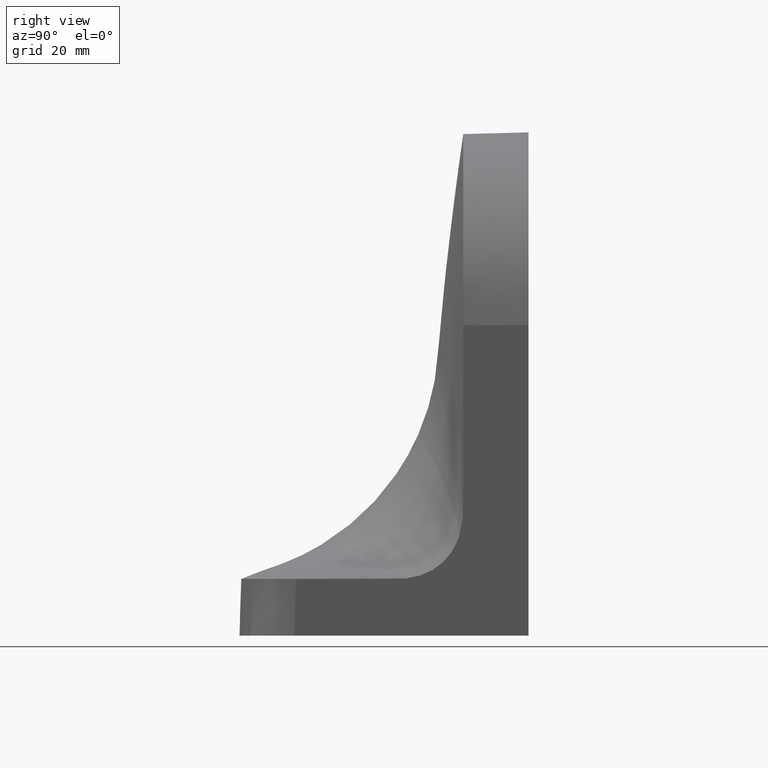
[diagram: clean part render]
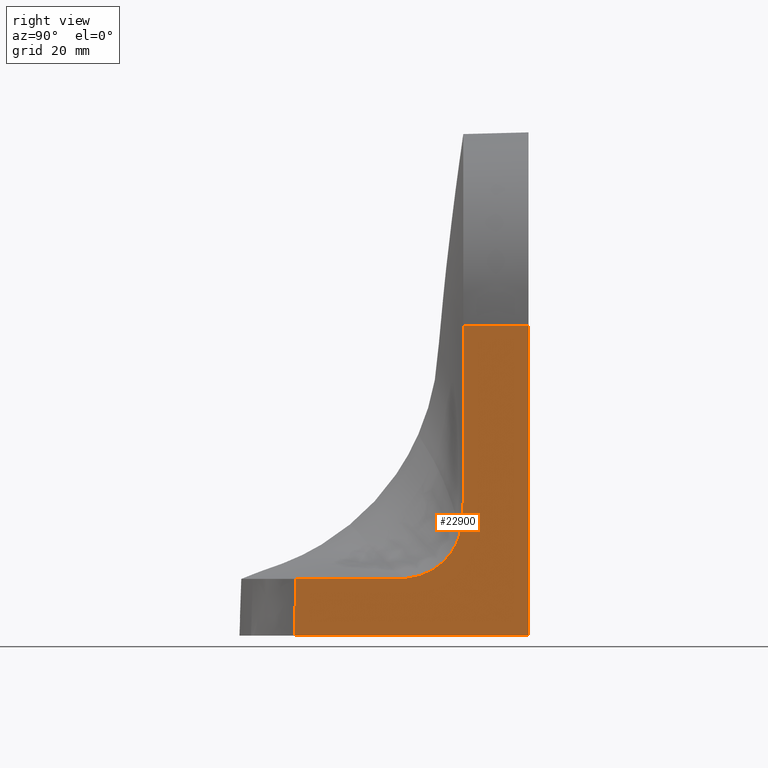
[diagram: same view with one face highlighted and labeled with its STEP entity id]
A machine part, right view. The second image highlights one B-rep face of the part: STEP entity #22900.
In plain terms, the highlighted planar face has unit normal (0.999, -0.0262, 0.0349).
Its self-contained STEP definition (entity closure, byte-faithful):
#459 = CARTESIAN_POINT ( 'NONE',  ( 74.25523126868630186, -23.00736894081169837, 104.2660714702110027 ) ) ;
#625 = CARTESIAN_POINT ( 'NONE',  ( 74.25523126868630186, -23.00736894081169837, 104.2660714702110027 ) ) ;
#656 = CARTESIAN_POINT ( 'NONE',  ( 74.17270098666395484, -23.00525012865582752, 106.6308397723373105 ) ) ;
#702 = VECTOR ( 'NONE', #53081, 1000.000000000000000 ) ;
#901 = ORIENTED_EDGE ( 'NONE', *, *, #26345, .T. ) ;
#1018 = CARTESIAN_POINT ( 'NONE',  ( 76.36643716833977180, -23.01893684610193702, 43.82109029424173485 ) ) ;
#1214 = CARTESIAN_POINT ( 'NONE',  ( 74.21046547155346218, -23.00663430341418092, 105.5489631305697884 ) ) ;
#1568 = CARTESIAN_POINT ( 'NONE',  ( 76.27885653992976245, -23.01010317783490322, 46.33483373321165288 ) ) ;
#1848 = CARTESIAN_POINT ( 'NONE',  ( 76.06503891046106958, -23.00630212378860051, 52.45852065692361066 ) ) ;
#1977 = CARTESIAN_POINT ( 'NONE',  ( 76.65797917407168427, -43.46079029540410232, 20.15186837681784837 ) ) ;
#2127 = CARTESIAN_POINT ( 'NONE',  ( 76.26720008635747661, -23.00984576400893999, 46.66870946604612413 ) ) ;
#3080 = CARTESIAN_POINT ( 'NONE',  ( 76.72466290581364490, -26.09274804863252228, 31.26220382637989204 ) ) ;
#4257 = EDGE_CURVE ( 'NONE', #11759, #13981, #47794, .T. ) ;
#4422 = CARTESIAN_POINT ( 'NONE',  ( 75.15619712898997307, -23.00531141550963099, 78.47616835009711167 ) ) ;
#4711 = CARTESIAN_POINT ( 'NONE',  ( 75.44189023084850021, -23.00428789394517182, 70.29855905187513088 ) ) ;
#4802 = B_SPLINE_CURVE_WITH_KNOTS ( 'NONE', 3,
 ( #1977, #45227, #6509, #44948, #28260, #27154, #49205, #36477, #53724, #32514, #45507, #6787, #24014, #41269, #52893, #33338, #29356, #3080, #45783, #54816, #7609, #24836 ),
 .UNSPECIFIED., .F., .F.,
 ( 4, 2, 2, 2, 2, 2, 2, 2, 2, 2, 4 ),
 ( 0.000000000000000000, 0.006430153132109961943, 0.008037691415137458717, 0.009645229698164954624, 0.01286030626421994644, 0.01446784454724743367, 0.01607538283027492090, 0.01929045939632989884, 0.02089799767935739128, 0.02250553596238487331, 0.02572061252843983042 ),
 .UNSPECIFIED. ) ;
#5502 = CARTESIAN_POINT ( 'NONE',  ( 74.47597193861523124, -7.666515893177463070, 109.4467044357807453 ) ) ;
#5555 = CARTESIAN_POINT ( 'NONE',  ( 76.06089169604261713, -23.00624593987393141, 52.57728275911799187 ) ) ;
#5747 = CARTESIAN_POINT ( 'NONE',  ( 74.21028011468109753, -23.00662913766518969, 105.5542412123686802 ) ) ;
#5826 = CARTESIAN_POINT ( 'NONE',  ( 76.36560344913026199, -23.01845695254299429, 43.84531644034294828 ) ) ;
#6101 = CARTESIAN_POINT ( 'NONE',  ( 76.05633849512008737, -23.00618508804033979, 52.70767030887307669 ) ) ;
#6509 = CARTESIAN_POINT ( 'NONE',  ( 76.74715414354004395, -39.20361969788754664, 20.79032290001560668 ) ) ;
#6657 = CARTESIAN_POINT ( 'NONE',  ( 76.33446744974858689, -23.01148545520704047, 44.74185517168780990 ) ) ;
#6787 = CARTESIAN_POINT ( 'NONE',  ( 76.80310430112331233, -29.96018764738739648, 26.11763558009348429 ) ) ;
#6961 = B_SPLINE_CURVE_WITH_KNOTS ( 'NONE', 3,
 ( #22425, #52124, #26944, #18196, #22702, #35443, #52685, #13961, #31742, #1214, #39400, #26383, #5747, #18465, #48993, #22147, #48167, #656, #17918, #9991, #47885, #17635, #52956 ),
 .UNSPECIFIED., .F., .F.,
 ( 4, 2, 2, 1, 1, 1, 1, 1, 2, 2, 1, 1, 2, 2, 4 ),
 ( 0.000000000000000000, 0.1250000000002101375, 0.1875000000003151923, 0.2187500000003677336, 0.2343750000003940182, 0.2421875000003949618, 0.2460937500003954059, 0.2480468750003956557, 0.2490234375003957668, 0.2500000000003958500, 0.3750000000003403944, 0.4375000000003128053, 0.4687500000002951528, 0.5000000000002774447, 1.000000000000000000 ),
 .UNSPECIFIED. ) ;
#7214 = VERTEX_POINT ( 'NONE', #8908 ) ;
#7588 = LINE ( 'NONE', #52806, #702 ) ;
#7609 = CARTESIAN_POINT ( 'NONE',  ( 76.65699486430382592, -24.73677771194880748, 34.21574752754838045 ) ) ;
#8736 = EDGE_CURVE ( 'NONE', #30452, #41019, #52569, .T. ) ;
#8908 = CARTESIAN_POINT ( 'NONE',  ( 76.33623540258125217, -82.63083625691017176, 1.037001081023662091E-14 ) ) ;
#8956 = CARTESIAN_POINT ( 'NONE',  ( 75.42182919616604408, -23.00436110798811029, 70.87278018269714153 ) ) ;
#9474 = CARTESIAN_POINT ( 'NONE',  ( 76.32322928003458173, -56.31338919402138288, 20.10013316570758590 ) ) ;
#9793 = CARTESIAN_POINT ( 'NONE',  ( 76.34410642749308806, -23.01204425214368499, 44.46550667059369744 ) ) ;
#9991 = CARTESIAN_POINT ( 'NONE',  ( 74.16717444936800518, -23.00499550582537012, 106.7891414210603074 ) ) ;
#10070 = CARTESIAN_POINT ( 'NONE',  ( 76.34505556496173995, -23.01214801186477743, 44.43825846416338976 ) ) ;
#10620 = CARTESIAN_POINT ( 'NONE',  ( 76.31672771609240158, -23.01099426808999127, 45.25004879773341315 ) ) ;
#10905 = CARTESIAN_POINT ( 'NONE',  ( 76.22444380684788712, -23.00895518838560250, 47.89333713533628156 ) ) ;
#11759 = VERTEX_POINT ( 'NONE', #39245 ) ;
#12208 = DIRECTION ( 'NONE',  ( 0.9990483607430193924, -0.02616100201823451030, 0.03489949670250105940 ) ) ;
#12925 = CARTESIAN_POINT ( 'NONE',  ( 74.46118202769872596, -23.00751116176639499, 98.37032774124462264 ) ) ;
#13961 = CARTESIAN_POINT ( 'NONE',  ( 74.21123807302076614, -23.00665463850611303, 105.5273000856290224 ) ) ;
#13981 = VERTEX_POINT ( 'NONE', #47875 ) ;
#13983 = CARTESIAN_POINT ( 'NONE',  ( 76.62966253428839991, -24.40257664500585122, 35.24869521133165051 ) ) ;
#14041 = CARTESIAN_POINT ( 'NONE',  ( 76.12807447639717395, -23.00721716123452509, 50.65335086749941951 ) ) ;
#14319 = CARTESIAN_POINT ( 'NONE',  ( 76.62966253428839991, -24.40257664500585122, 35.24869521133165051 ) ) ;
#14597 = CARTESIAN_POINT ( 'NONE',  ( 75.58036401282515726, -23.00378074852485000, 66.33492775264882368 ) ) ;
#14875 = CARTESIAN_POINT ( 'NONE',  ( 76.35118236290514915, -23.01302777431422442, 44.26221056978951651 ) ) ;
#15156 = CARTESIAN_POINT ( 'NONE',  ( 76.06413465822176079, -23.00628981720745614, 52.48441540485019630 ) ) ;
#15776 = CARTESIAN_POINT ( 'NONE',  ( 76.65797917407168427, -43.46079029540410232, 20.15186837681784837 ) ) ;
#16545 = EDGE_CURVE ( 'NONE', #49576, #13981, #6961, .T. ) ;
#17635 = CARTESIAN_POINT ( 'NONE',  ( 74.10463997545069503, -23.00135401649546552, 108.5799915448494062 ) ) ;
#17918 = CARTESIAN_POINT ( 'NONE',  ( 74.16897754911067864, -23.00507997709804187, 106.7374948450610930 ) ) ;
#18196 = CARTESIAN_POINT ( 'NONE',  ( 74.22075897857608595, -23.00688539095119722, 105.2601222348999812 ) ) ;
#18275 = CARTESIAN_POINT ( 'NONE',  ( 76.47267769108489688, -23.08246530855983636, 40.73218075361157275 ) ) ;
#18465 = CARTESIAN_POINT ( 'NONE',  ( 74.21030991748276051, -23.00662998825352545, 105.5533867407371247 ) ) ;
#18547 = CARTESIAN_POINT ( 'NONE',  ( 75.74448153187304911, -23.00371751991756142, 61.63687477933595460 ) ) ;
#18567 = ORIENTED_EDGE ( 'NONE', *, *, #48823, .T. ) ;
#18826 = CARTESIAN_POINT ( 'NONE',  ( 76.09044426318278909, -23.00664897987195090, 51.73099583586748196 ) ) ;
#19104 = CARTESIAN_POINT ( 'NONE',  ( 76.30732745368638348, -23.01076373316249857, 45.51931766003406921 ) ) ;
#19382 = CARTESIAN_POINT ( 'NONE',  ( 75.91270472790847634, -23.00467030578484895, 56.82052927429872824 ) ) ;
#19774 = AXIS2_PLACEMENT_3D ( 'NONE', #28873, #12208, #42718 ) ;
#22147 = CARTESIAN_POINT ( 'NONE',  ( 74.19138400216398566, -23.00603449690778390, 106.0956254051905745 ) ) ;
#22175 = CARTESIAN_POINT ( 'NONE',  ( 74.67620507080019365, -5.977045331083648973E-16, 109.4616374671337269 ) ) ;
#22425 = CARTESIAN_POINT ( 'NONE',  ( 74.25523126868630186, -23.00736894081169837, 104.2660714702110027 ) ) ;
#22702 = CARTESIAN_POINT ( 'NONE',  ( 74.21773945622652491, -23.00680947582613456, 105.3473679955647953 ) ) ;
#22900 = ADVANCED_FACE ( 'NONE', ( #29152 ), #38202, .T. ) ;
#23057 = CARTESIAN_POINT ( 'NONE',  ( 76.34319665887129247, -23.01195717993820011, 44.49161537795347954 ) ) ;
#23336 = CARTESIAN_POINT ( 'NONE',  ( 76.28533225141028140, -23.01024934116702170, 46.14934759930975616 ) ) ;
#23455 = CARTESIAN_POINT ( 'NONE',  ( 76.33623540258125217, -82.63083625691017176, 1.037001081023662091E-14 ) ) ;
#23614 = CARTESIAN_POINT ( 'NONE',  ( 76.02870145618652487, -23.00583401193726374, 53.49908352552879620 ) ) ;
#24014 = CARTESIAN_POINT ( 'NONE',  ( 76.79971962544730957, -29.57510410912609089, 26.50318916048402329 ) ) ;
#24663 = DIRECTION ( 'NONE',  ( 0.02617694830786621366, 0.9996573249755574819, -3.190671518216046637E-18 ) ) ;
#24836 = CARTESIAN_POINT ( 'NONE',  ( 76.62966253428839991, -24.40257664500585122, 35.24869521133165051 ) ) ;
#24973 = VECTOR ( 'NONE', #24663, 1000.000000000000114 ) ;
#25218 = EDGE_CURVE ( 'NONE', #30452, #32977, #4802, .T. ) ;
#26345 = EDGE_CURVE ( 'NONE', #41019, #7214, #35219, .T. ) ;
#26383 = CARTESIAN_POINT ( 'NONE',  ( 74.21031001317312814, -23.00662998077149268, 105.5533869843093981 ) ) ;
#26746 = CARTESIAN_POINT ( 'NONE',  ( 74.28671277581784693, -23.00767556508820277, 103.3646381355130188 ) ) ;
#26944 = CARTESIAN_POINT ( 'NONE',  ( 74.23184399895713170, -23.00716095588449051, 104.9378516054612192 ) ) ;
#27026 = CARTESIAN_POINT ( 'NONE',  ( 76.34415933718378255, -23.01204833198908162, 44.46398899619774170 ) ) ;
#27154 = CARTESIAN_POINT ( 'NONE',  ( 76.79556863343398732, -35.19600612131700501, 22.40853449148060861 ) ) ;
#27246 = CARTESIAN_POINT ( 'NONE',  ( 74.27573897290450589, -15.33303178142911705, 109.4317666425568518 ) ) ;
#27299 = CARTESIAN_POINT ( 'NONE',  ( 76.06478241283146247, -23.00629862967091555, 52.46586589024337854 ) ) ;
#27854 = CARTESIAN_POINT ( 'NONE',  ( 76.29790818059214530, -23.01054049842527860, 45.78912525837497327 ) ) ;
#28131 = CARTESIAN_POINT ( 'NONE',  ( 76.19146260569381468, -23.00833198990433814, 48.83793867862052451 ) ) ;
#28260 = CARTESIAN_POINT ( 'NONE',  ( 76.78583667024138038, -36.17675162846516201, 21.95194958845621613 ) ) ;
#28873 = CARTESIAN_POINT ( 'NONE',  ( 78.44636149690879279, -2.054190269545594472, -0.004361587295289890732 ) ) ;
#29063 = ORIENTED_EDGE ( 'NONE', *, *, #37295, .T. ) ;
#29152 = FACE_OUTER_BOUND ( 'NONE', #46590, .T. ) ;
#29356 = CARTESIAN_POINT ( 'NONE',  ( 76.74334556742826408, -26.62860442104202008, 30.32570258170263955 ) ) ;
#30427 = CARTESIAN_POINT ( 'NONE',  ( 75.38214205304039695, -23.00450540210032457, 72.00877365393810692 ) ) ;
#30452 = VERTEX_POINT ( 'NONE', #15776 ) ;
#30949 = CARTESIAN_POINT ( 'NONE',  ( 75.98847938599740814, -69.16598809263867054, 20.04839795459733409 ) ) ;
#31016 = ORIENTED_EDGE ( 'NONE', *, *, #25218, .F. ) ;
#31267 = CARTESIAN_POINT ( 'NONE',  ( 76.20151933129847066, -23.00851808960088718, 48.54991092079936976 ) ) ;
#31493 = CARTESIAN_POINT ( 'NONE',  ( 74.07528795069339367, -22.99954979039394942, 109.4208379550731962 ) ) ;
#31591 = VERTEX_POINT ( 'NONE', #54697 ) ;
#31669 = CARTESIAN_POINT ( 'NONE',  ( 75.88122772228739166, -82.22280745730070350, 13.33111257559553842 ) ) ;
#31742 = CARTESIAN_POINT ( 'NONE',  ( 74.21070165034882393, -23.00664069013664204, 105.5422938592579811 ) ) ;
#31823 = CARTESIAN_POINT ( 'NONE',  ( 76.32723349926041578, -23.01126212938326177, 44.94910483107042154 ) ) ;
#32088 = B_SPLINE_CURVE_WITH_KNOTS ( 'NONE', 3,
 ( #459, #26746, #12925, #43154, #4422, #34684, #30427, #8956, #4711, #53320, #44816, #40587, #40861, #35791, #32382, #36346, #14597, #18547, #19382, #52766, #23614, #53870, #6101, #5555, #40305, #15156, #27299, #1848, #18826, #14041, #49635, #48799, #39763, #28131, #31267, #10905, #45376, #2127, #1568, #23336, #27854, #19104, #10620, #53040, #36626, #48519, #31823, #6657, #35521, #23057, #9793, #27026, #10070, #53591, #14875, #32099, #44271, #44543, #5826, #36071, #1018, #49350, #18275, #45098, #14319 ),
 .UNSPECIFIED., .F., .F.,
 ( 4, 1, 1, 1, 1, 1, 1, 1, 1, 1, 1, 1, 2, 2, 1, 1, 1, 1, 1, 1, 1, 1, 2, 2, 1, 2, 2, 1, 1, 1, 2, 2, 1, 2, 2, 1, 1, 1, 2, 2, 1, 1, 1, 1, 1, 1, 2, 2, 4 ),
 ( 0.000000000000000000, 0.2500000000003113065, 0.3750000000004669598, 0.4375000000005447864, 0.4687500000005836998, 0.4843750000006029621, 0.4921875000006128431, 0.4960937500006178946, 0.4980468750006206147, 0.4990234375006217804, 0.4995117187506223910, 0.4997558593756225576, 0.4998779296881223910, 0.5000000000006222800, 0.6250000000004733991, 0.6875000000003989031, 0.7187500000003618217, 0.7343750000003435030, 0.7421875000003343992, 0.7460937500003297362, 0.7480468750003274048, 0.7490234375003262945, 0.7495117187503259615, 0.7500000000003255174, 0.7812500000002925438, 0.7968750000002761125, 0.8007812500002721157, 0.8046875000002680078, 0.8125000000002600142, 0.8281250000002438050, 0.8359375000002358114, 0.8437500000002277067, 0.8515625000002197131, 0.8554687500002157163, 0.8564453125002146061, 0.8574218750002134959, 0.8593750000002111644, 0.8632812500002062794, 0.8652343750002035039, 0.8657226562502031708, 0.8662109375002027267, 0.8671875000002020606, 0.8710937500001999512, 0.8730468750001989520, 0.8740234375001983969, 0.8745117187501983969, 0.8747558593751980638, 0.8750000000001978417, 1.000000000000000000 ),
 .UNSPECIFIED. ) ;
#32099 = CARTESIAN_POINT ( 'NONE',  ( 76.35684378470220679, -23.01448452601094630, 44.09905222116306334 ) ) ;
#32382 = CARTESIAN_POINT ( 'NONE',  ( 75.46173414513731359, -23.00421529492537687, 69.73055284402526866 ) ) ;
#32514 = CARTESIAN_POINT ( 'NONE',  ( 76.80946275591121264, -31.16401326731369181, 25.03321626517497478 ) ) ;
#32977 = VERTEX_POINT ( 'NONE', #13983 ) ;
#33338 = CARTESIAN_POINT ( 'NONE',  ( 76.75186251308053897, -26.91246038955873132, 29.86911155136320772 ) ) ;
#34684 = CARTESIAN_POINT ( 'NONE',  ( 75.30450747174683102, -23.00478545442986444, 74.23096543480767195 ) ) ;
#35188 = ORIENTED_EDGE ( 'NONE', *, *, #8736, .T. ) ;
#35219 = B_SPLINE_CURVE_WITH_KNOTS ( 'NONE', 3,
 ( #36747, #31669, #53991, #23455 ),
 .UNSPECIFIED., .F., .F.,
 ( 4, 4 ),
 ( 0.000000000000000000, 0.02001767180163790266 ),
 .UNSPECIFIED. ) ;
#35443 = CARTESIAN_POINT ( 'NONE',  ( 74.21411981147612380, -23.00672383795662057, 105.4479621449996500 ) ) ;
#35480 = CARTESIAN_POINT ( 'NONE',  ( 76.65797917407168427, -43.46079029540410232, 20.15186837681784837 ) ) ;
#35521 = CARTESIAN_POINT ( 'NONE',  ( 76.34043934499362649, -23.01175071395338279, 44.57070222812006222 ) ) ;
#35791 = CARTESIAN_POINT ( 'NONE',  ( 75.46137211000657885, -23.00421662097540576, 69.74091562708103709 ) ) ;
#36071 = CARTESIAN_POINT ( 'NONE',  ( 76.36610461765494051, -23.01874372695503723, 43.83075480057667761 ) ) ;
#36346 = CARTESIAN_POINT ( 'NONE',  ( 75.46198074507314857, -23.00421439164410131, 69.72349424277902585 ) ) ;
#36477 = CARTESIAN_POINT ( 'NONE',  ( 76.80868376474987258, -33.31549209897480068, 23.44274656047717187 ) ) ;
#36626 = CARTESIAN_POINT ( 'NONE',  ( 76.32125341042295474, -23.01110616295784439, 45.12041040143733994 ) ) ;
#36747 = CARTESIAN_POINT ( 'NONE',  ( 75.65372949196019192, -82.01858699125600083, 19.99666274348705031 ) ) ;
#37295 = EDGE_CURVE ( 'NONE', #31591, #11759, #7588, .T. ) ;
#37671 = ORIENTED_EDGE ( 'NONE', *, *, #47565, .T. ) ;
#38202 = PLANE ( 'NONE',  #19774 ) ;
#38235 = LINE ( 'NONE', #41915, #24973 ) ;
#39245 = CARTESIAN_POINT ( 'NONE',  ( 74.67620507080019365, -5.977045331083648973E-16, 109.4616374671337269 ) ) ;
#39400 = CARTESIAN_POINT ( 'NONE',  ( 74.21035543878770113, -23.00663125578416768, 105.5520908635127597 ) ) ;
#39763 = CARTESIAN_POINT ( 'NONE',  ( 76.18470657743090158, -23.00820819640753356, 49.03143251552856441 ) ) ;
#39918 = ORIENTED_EDGE ( 'NONE', *, *, #4257, .T. ) ;
#40305 = CARTESIAN_POINT ( 'NONE',  ( 76.06316262090744829, -23.00627661641392763, 52.51225126849269742 ) ) ;
#40587 = CARTESIAN_POINT ( 'NONE',  ( 75.45956256133926843, -23.00422324814913821, 69.79271159627997179 ) ) ;
#40861 = CARTESIAN_POINT ( 'NONE',  ( 75.46082911798659154, -23.00421860975269439, 69.75645806494731005 ) ) ;
#41019 = VERTEX_POINT ( 'NONE', #49434 ) ;
#41269 = CARTESIAN_POINT ( 'NONE',  ( 76.78694468299076448, -28.47669567617872133, 27.69226792871787879 ) ) ;
#41915 = CARTESIAN_POINT ( 'NONE',  ( 77.89822222217250669, -22.98096617442745071, 8.870550745114030840E-17 ) ) ;
#42718 = DIRECTION ( 'NONE',  ( 0.000000000000000000, -0.8001498698942310916, -0.5998001214640131806 ) ) ;
#43154 = CARTESIAN_POINT ( 'NONE',  ( 74.88741172279769387, -23.00622676335174432, 86.16985159487752810 ) ) ;
#43952 = CARTESIAN_POINT ( 'NONE',  ( 75.65372949196019192, -82.01858699125600083, 19.99666274348705031 ) ) ;
#44153 = ORIENTED_EDGE ( 'NONE', *, *, #16545, .F. ) ;
#44271 = CARTESIAN_POINT ( 'NONE',  ( 76.36198048708590136, -23.01659184276493875, 43.95042705163428565 ) ) ;
#44543 = CARTESIAN_POINT ( 'NONE',  ( 76.36441765842437235, -23.01780814240625261, 43.87974776164431034 ) ) ;
#44816 = CARTESIAN_POINT ( 'NONE',  ( 75.45703114697522551, -23.00423251660619783, 69.86517003085789668 ) ) ;
#44948 = CARTESIAN_POINT ( 'NONE',  ( 76.78004812807071744, -36.67902330720288973, 21.74114721221309310 ) ) ;
#45098 = CARTESIAN_POINT ( 'NONE',  ( 76.56030941033860415, -23.54361323370940795, 37.87791560133196356 ) ) ;
#45227 = CARTESIAN_POINT ( 'NONE',  ( 76.70802276726540470, -41.29967337033168917, 20.33929269838882803 ) ) ;
#45376 = CARTESIAN_POINT ( 'NONE',  ( 76.24940613884005813, -23.00946128107541355, 47.17837505546145138 ) ) ;
#45507 = CARTESIAN_POINT ( 'NONE',  ( 76.80797023417166258, -30.75474133174520830, 25.38273607153706379 ) ) ;
#45783 = CARTESIAN_POINT ( 'NONE',  ( 76.71446400525580600, -25.84010371109600257, 31.74354669647976834 ) ) ;
#46590 = EDGE_LOOP ( 'NONE', ( #29063, #39918, #44153, #37671, #31016, #35188, #901, #18567 ) ) ;
#47565 = EDGE_CURVE ( 'NONE', #49576, #32977, #32088, .T. ) ;
#47794 = B_SPLINE_CURVE_WITH_KNOTS ( 'NONE', 3,
 ( #22175, #5502, #27246, #31493 ),
 .UNSPECIFIED., .F., .F.,
 ( 4, 4 ),
 ( 1.236447576014035112E-18, 0.02300743445469166995 ),
 .UNSPECIFIED. ) ;
#47875 = CARTESIAN_POINT ( 'NONE',  ( 74.07528795069339367, -22.99954979039394942, 109.4208379550731962 ) ) ;
#47885 = CARTESIAN_POINT ( 'NONE',  ( 74.13463613756827897, -23.00343226635175142, 107.7210986910973389 ) ) ;
#48167 = CARTESIAN_POINT ( 'NONE',  ( 74.17829247984566621, -23.00549902907932420, 106.4706696284930985 ) ) ;
#48519 = CARTESIAN_POINT ( 'NONE',  ( 76.32370283287647794, -23.01116829879716619, 45.05024557804023999 ) ) ;
#48799 = CARTESIAN_POINT ( 'NONE',  ( 76.18163702195630549, -23.00815252191845417, 49.11934469637422751 ) ) ;
#48823 = EDGE_CURVE ( 'NONE', #7214, #31591, #38235, .T. ) ;
#48993 = CARTESIAN_POINT ( 'NONE',  ( 74.20268302991524934, -23.00641283643473045, 105.7719025483633288 ) ) ;
#49205 = CARTESIAN_POINT ( 'NONE',  ( 76.79952440099930300, -34.71724287686242150, 22.65418052975415719 ) ) ;
#49350 = CARTESIAN_POINT ( 'NONE',  ( 76.36656052044416754, -23.01900917338720376, 43.81750494534750828 ) ) ;
#49434 = CARTESIAN_POINT ( 'NONE',  ( 75.65372949196019192, -82.01858699125600083, 19.99666274348705031 ) ) ;
#49576 = VERTEX_POINT ( 'NONE', #625 ) ;
#49635 = CARTESIAN_POINT ( 'NONE',  ( 76.16586738186504135, -23.00786919501013017, 49.57098574245750910 ) ) ;
#52124 = CARTESIAN_POINT ( 'NONE',  ( 74.24211040938212136, -23.00740379523605128, 104.6422981523101754 ) ) ;
#52569 = B_SPLINE_CURVE_WITH_KNOTS ( 'NONE', 3,
 ( #35480, #9474, #30949, #43952 ),
 .UNSPECIFIED., .F., .F.,
 ( 4, 4 ),
 ( 0.000000000000000000, 1.000000000000000000 ),
 .UNSPECIFIED. ) ;
#52685 = CARTESIAN_POINT ( 'NONE',  ( 74.21256367737343851, -23.00668731712530857, 105.4906915309527022 ) ) ;
#52766 = CARTESIAN_POINT ( 'NONE',  ( 75.99100451521275090, -23.00540333686245731, 54.57853559607039529 ) ) ;
#52806 = CARTESIAN_POINT ( 'NONE',  ( 74.82808170949880378, 0.000000000000000000, 105.1139499282426044 ) ) ;
#52893 = CARTESIAN_POINT ( 'NONE',  ( 76.77490904033436436, -27.81241356690771838, 28.53475786255014768 ) ) ;
#52956 = CARTESIAN_POINT ( 'NONE',  ( 74.07528795069339367, -22.99954979039394942, 109.4208379550731962 ) ) ;
#53040 = CARTESIAN_POINT ( 'NONE',  ( 76.32064185172150417, -23.01109133822508923, 45.13792826289149218 ) ) ;
#53081 = DIRECTION ( 'NONE',  ( -0.03491144540944078611, 0.000000000000000000, 0.9993904096895385170 ) ) ;
#53320 = CARTESIAN_POINT ( 'NONE',  ( 75.45197511396965240, -23.00425102017699075, 70.00989238766374001 ) ) ;
#53591 = CARTESIAN_POINT ( 'NONE',  ( 76.34639053663919128, -23.01230914891147705, 44.39992218716716366 ) ) ;
#53724 = CARTESIAN_POINT ( 'NONE',  ( 76.81118978424061083, -32.42691135358627008, 24.03709690845323976 ) ) ;
#53870 = CARTESIAN_POINT ( 'NONE',  ( 76.04718668850379970, -23.00606538935863199, 52.96974368240108788 ) ) ;
#53991 = CARTESIAN_POINT ( 'NONE',  ( 76.10872969777349795, -82.42689035555659416, 6.665558319288299671 ) ) ;
#54697 = CARTESIAN_POINT ( 'NONE',  ( 78.50000000000000000, 0.000000000000000000, 1.526621083812225296E-17 ) ) ;
#54816 = CARTESIAN_POINT ( 'NONE',  ( 76.68170027188641313, -25.13575152389445577, 33.20944500273741795 ) ) ;